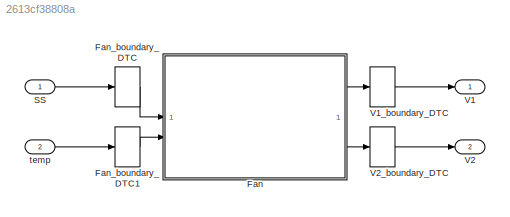
MODEL slx_2613cf38808a
KIND model
CONFIG AbsTol = auto
CONFIG EnableMultiTasking = off
CONFIG FixedStep = 1
CONFIG MaxStep = auto
CONFIG MinStep = auto
CONFIG RelTol = 1e-3
CONFIG SampleTimeConstraint = Unconstrained
CONFIG SolverName = FixedStepAuto
CONFIG StartTime = 0.0
CONFIG StopTime = 10
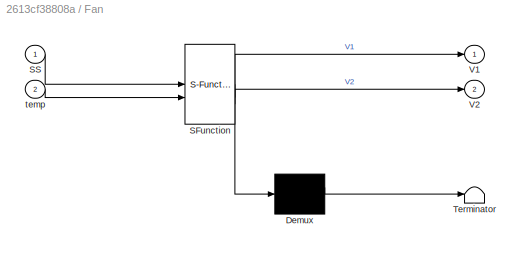
BLOCK [SubSystem] Fan
  ErrorFcn = Stateflow.Translate.translate
  PermitHierarchicalResolution = ExplicitOnly
  SFBlockType = Chart
  TreatAsAtomicUnit = on
BLOCK [Demux] Fan/ Demux 
  Outputs = 1
BLOCK [S-Function] Fan/ SFunction 
  EnableBusSupport = on
  FunctionName = sf_sfun
  PortCounts = [2 3]
  SFcnIsStateOwnerBlock = off
  SFunctionDeploymentMode = off
  Tag = Stateflow S-Function 3
BLOCK [Terminator] Fan/ Terminator 
BLOCK [Inport] Fan/SS
BLOCK [Outport] Fan/V1
BLOCK [Outport] Fan/V2
  Port = 2
BLOCK [Inport] Fan/temp
  Port = 2
BLOCK [DataTypeConversion] Fan_boundary_DTC
BLOCK [DataTypeConversion] Fan_boundary_DTC1
BLOCK [Inport] SS
  OutDataTypeStr = fixdt(1,16,4)
BLOCK [Outport] V1
BLOCK [DataTypeConversion] V1_boundary_DTC
BLOCK [Outport] V2
  Port = 2
BLOCK [DataTypeConversion] V2_boundary_DTC
BLOCK [Inport] temp
  OutDataTypeStr = fixdt(1,16,4)
  Port = 2
LINE Fan:1 -> V1_boundary_DTC:1
LINE Fan:2 -> V2_boundary_DTC:1
LINE Fan_boundary_DTC1:1 -> Fan:2
LINE Fan_boundary_DTC:1 -> Fan:1
LINE SS:1 -> Fan_boundary_DTC:1
LINE V1_boundary_DTC:1 -> V1:1
LINE V2_boundary_DTC:1 -> V2:1
LINE temp:1 -> Fan_boundary_DTC1:1
CHART Fan states=6 transitions=16
  STATE_LABEL 'On'
  STATE_LABEL 'RightLow\nentry:\nV1  = temp - 20;\nV2 = 10;\n'
  STATE_LABEL 'RighHigh\nentry:\nV1  = temp - 20;\nV2 = 20;'
  STATE_LABEL 'LeftLow\nentry:\nV1  = temp - 20;\nV2 = -10;'
  STATE_LABEL 'LeftHigh\nentry:\nV1  = temp - 20;\nV2 = -20;'
  STATE_LABEL '{counter = counter + 1;}'
  STATE_LABEL '[SS == 1]'
  STATE_LABEL '{counter = counter +1}'
  STATE_LABEL '[SS == 0]'
  STATE_LABEL '[counter >= 10]{counter = 0}'
  STATE_LABEL '[counter >= 10]{counter = 0}'
  STATE_LABEL '[counter >= 5]{counter = 0}'
  STATE_LABEL '[counter >= 5]{counter = 0}'
  STATE_LABEL '[SS == 1]'
  STATE_LABEL '{counter = counter + 1}'
  STATE_LABEL '{counter = counter +1}'
  STATE_LABEL '[SS == 0]'
  STATE_LABEL 'RightLow\nentry:\nV1  = temp - 20;\nV2 = 10;\n'
  STATE_LABEL 'RighHigh\nentry:\nV1  = temp - 20;\nV2 = 20;'
  STATE_LABEL 'LeftLow\nentry:\nV1  = temp - 20;\nV2 = -10;'
  STATE_LABEL 'LeftHigh\nentry:\nV1  = temp - 20;\nV2 = -20;'
  STATE_LABEL 'Off\nentry:\nV1 = 0;\nV2 = 0;\ncounter = 0;'
CHART  states=0 transitions=0
